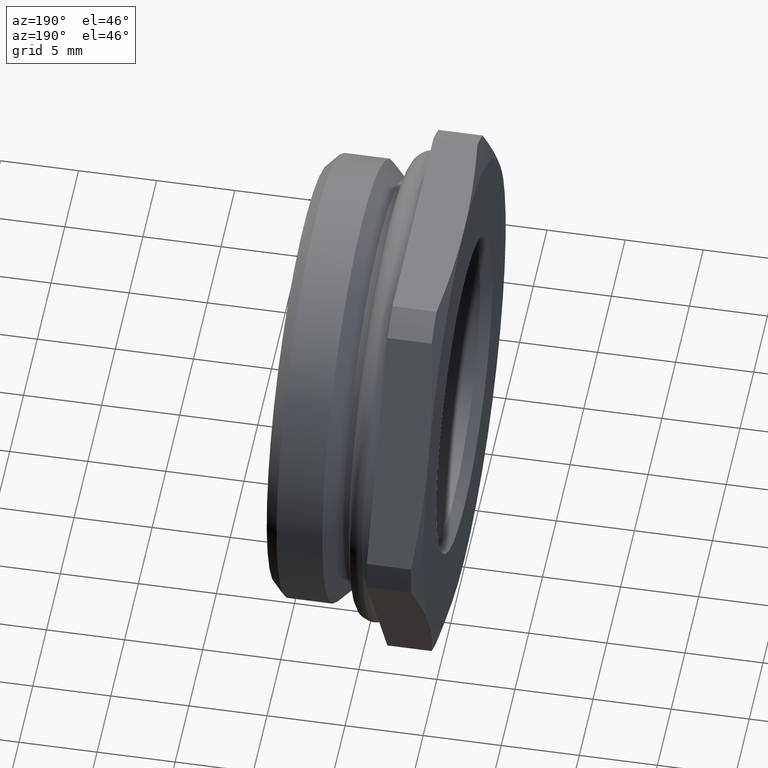
[diagram: clean part render]
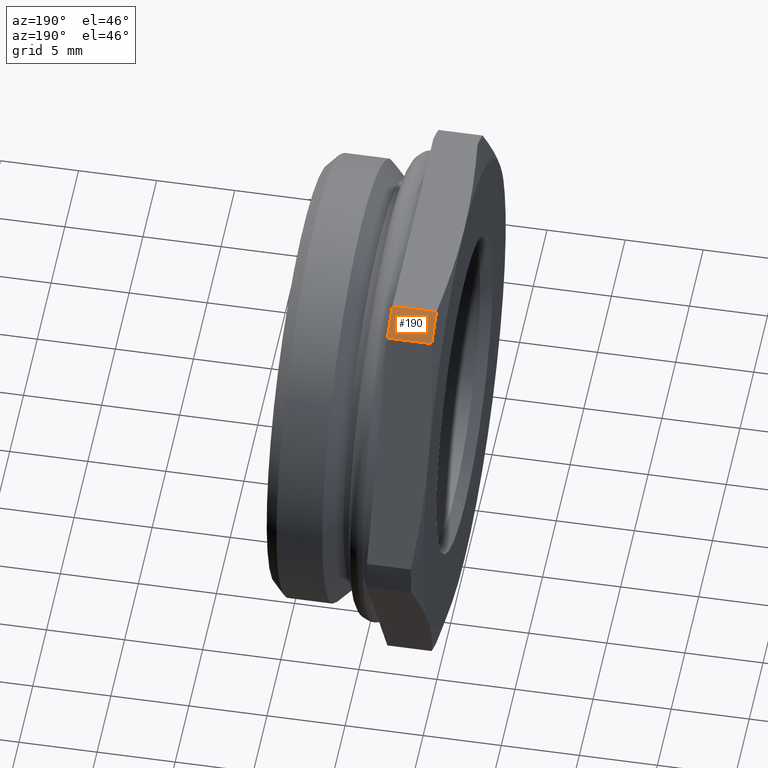
[diagram: same view with one face highlighted and labeled with its STEP entity id]
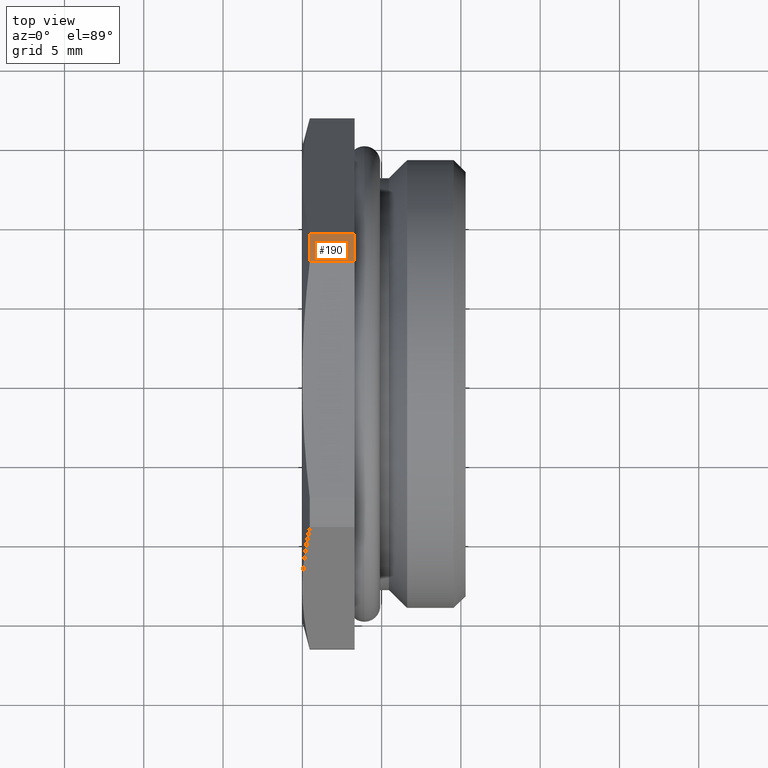
[diagram: same view with one face highlighted and labeled with its STEP entity id]
A machine part, auxiliary view. The second image highlights one B-rep face of the part: STEP entity #190.
A second angle (top view) of the same face is appended — the face is thin or edge-on in the first view.
In plain terms, the highlighted cylindrical surface (partial cylindrical patch) has radius 16.75 mm, axis along (-1, 0, 0).
Its self-contained STEP definition (entity closure, byte-faithful):
#190 = ADVANCED_FACE( '', ( #256 ), #257, .T. );
#256 = FACE_OUTER_BOUND( '', #331, .T. );
#257 = CYLINDRICAL_SURFACE( '', #332, 16.7500000000000 );
#331 = EDGE_LOOP( '', ( #494, #495, #496, #497 ) );
#332 = AXIS2_PLACEMENT_3D( '', #498, #499, #500 );
#494 = ORIENTED_EDGE( '', *, *, #582, .F. );
#495 = ORIENTED_EDGE( '', *, *, #599, .T. );
#496 = ORIENTED_EDGE( '', *, *, #563, .T. );
#497 = ORIENTED_EDGE( '', *, *, #575, .T. );
#498 = CARTESIAN_POINT( '', ( 10.3000000000000, 0.000000000000000, 0.000000000000000 ) );
#499 = DIRECTION( '', ( -1.00000000000000, -0.000000000000000, 0.000000000000000 ) );
#500 = DIRECTION( '', ( -0.000000000000000, 0.000000000000000, -1.00000000000000 ) );
#563 = EDGE_CURVE( '', #623, #624, #625, .T. );
#575 = EDGE_CURVE( '', #624, #645, #647, .T. );
#582 = EDGE_CURVE( '', #657, #645, #659, .T. );
#599 = EDGE_CURVE( '', #657, #623, #687, .F. );
#623 = VERTEX_POINT( '', #723 );
#624 = VERTEX_POINT( '', #724 );
#625 = CIRCLE( '', #725, 16.7500000000000 );
#645 = VERTEX_POINT( '', #756 );
#647 = LINE( '', #759, #760 );
#657 = VERTEX_POINT( '', #780 );
#659 = CIRCLE( '', #783, 16.7500000000000 );
#687 = LINE( '', #833, #834 );
#723 = CARTESIAN_POINT( '', ( 0.468911086754465, 9.26336817779768, 13.9553756668377 ) );
#724 = CARTESIAN_POINT( '', ( 0.468911086754465, 7.45402575793779, 15.0000000000000 ) );
#725 = AXIS2_PLACEMENT_3D( '', #901, #902, #903 );
#756 = CARTESIAN_POINT( '', ( 3.30000000000000, 7.45402575793778, 15.0000000000000 ) );
#759 = CARTESIAN_POINT( '', ( 10.3000000000000, 7.45402575793779, 15.0000000000000 ) );
#760 = VECTOR( '', #927, 1000.00000000000 );
#780 = CARTESIAN_POINT( '', ( 3.30000000000000, 9.26336817779770, 13.9553756668377 ) );
#783 = AXIS2_PLACEMENT_3D( '', #938, #939, #940 );
#833 = CARTESIAN_POINT( '', ( 10.3000000000000, 9.26336817779768, 13.9553756668377 ) );
#834 = VECTOR( '', #966, 1000.00000000000 );
#901 = CARTESIAN_POINT( '', ( 0.468911086754465, 0.000000000000000, 0.000000000000000 ) );
#902 = DIRECTION( '', ( 1.00000000000000, 0.000000000000000, -0.000000000000000 ) );
#903 = DIRECTION( '', ( -0.000000000000000, 0.000000000000000, -1.00000000000000 ) );
#927 = DIRECTION( '', ( 1.00000000000000, -0.000000000000000, -0.000000000000000 ) );
#938 = CARTESIAN_POINT( '', ( 3.30000000000000, 0.000000000000000, 0.000000000000000 ) );
#939 = DIRECTION( '', ( 1.00000000000000, 0.000000000000000, -0.000000000000000 ) );
#940 = DIRECTION( '', ( -0.000000000000000, 0.000000000000000, -1.00000000000000 ) );
#966 = DIRECTION( '', ( 1.00000000000000, -0.000000000000000, -0.000000000000000 ) );